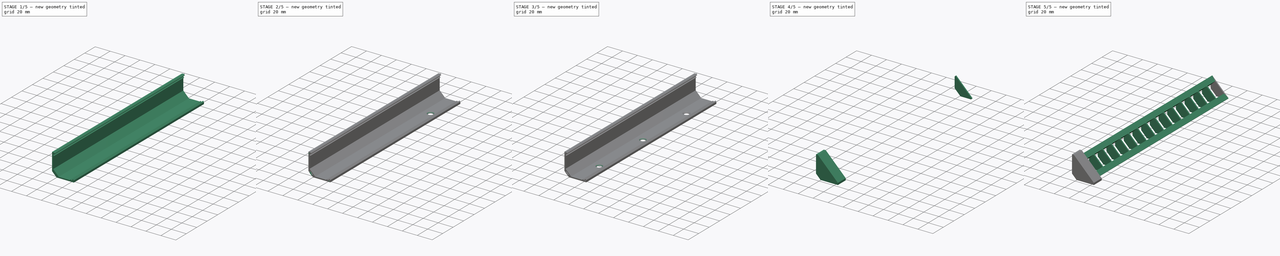
[diagram: build sequence overview — one tinted view per stage of 5, left to right]
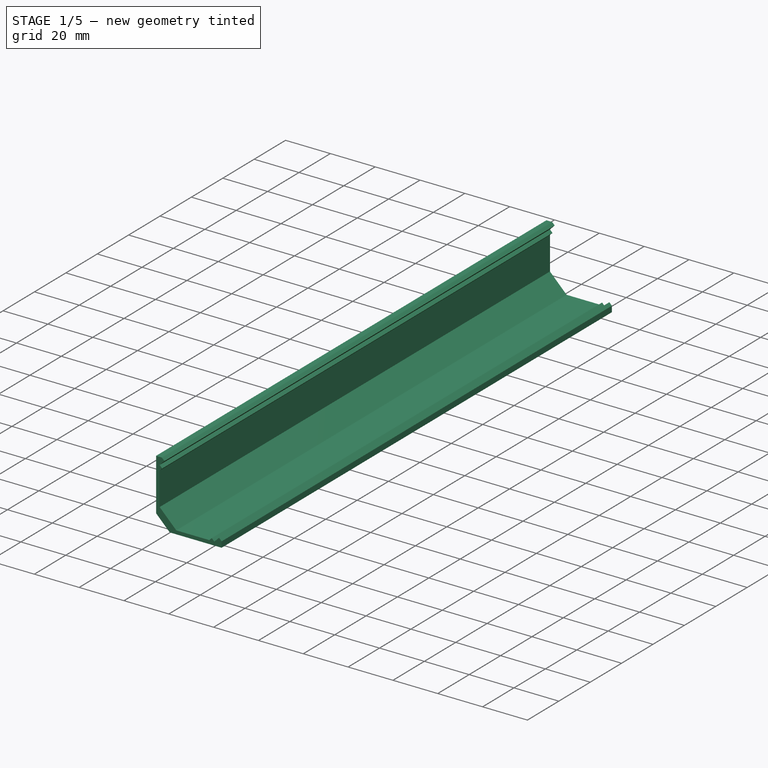
[diagram: stage 1 of 5 — iso view after this stage's code; geometry added in this stage tinted green]
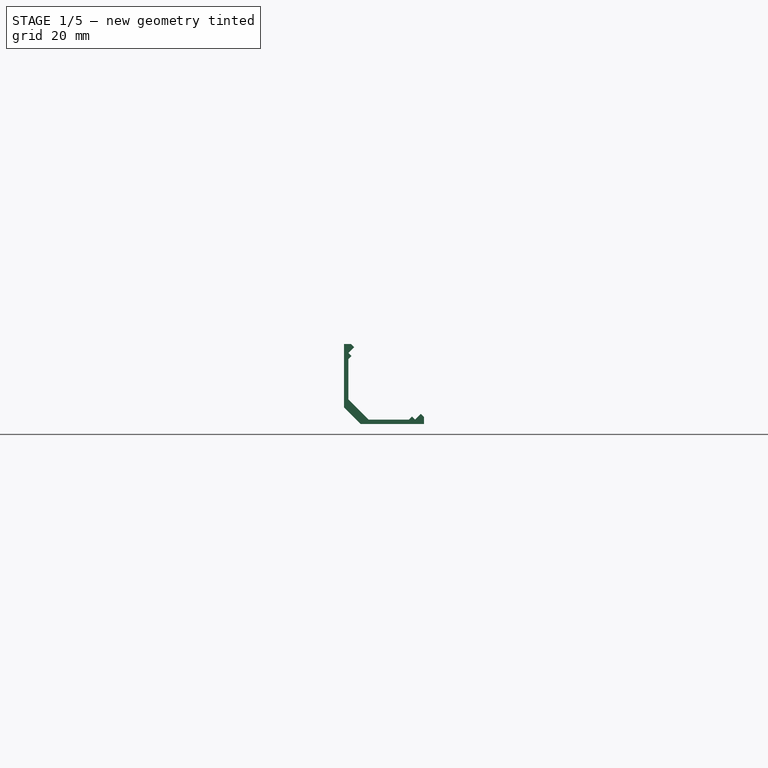
[diagram: stage 1 of 5 — front view after this stage's code; geometry added in this stage tinted green]
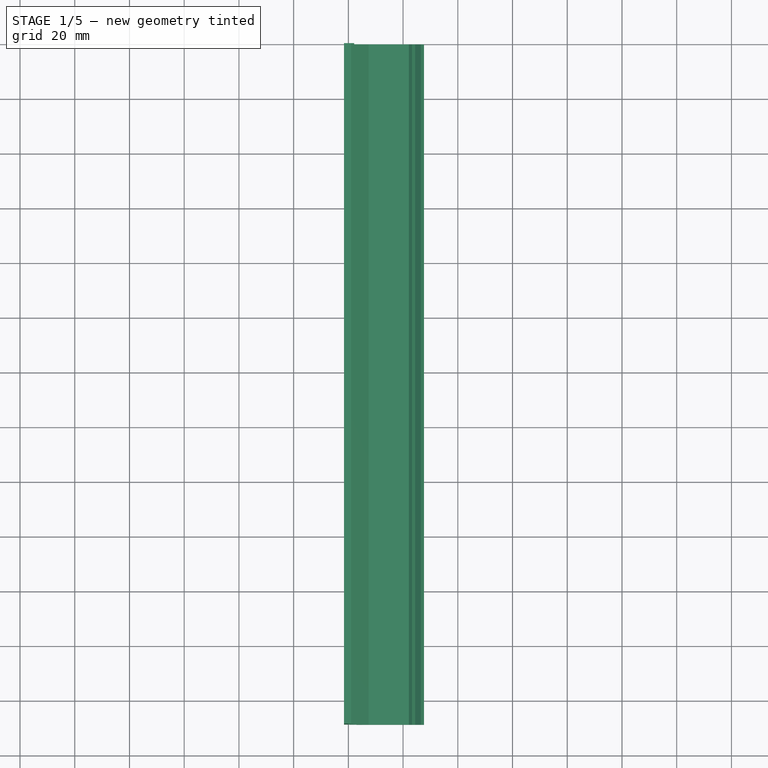
[diagram: stage 1 of 5 — top view after this stage's code; geometry added in this stage tinted green]
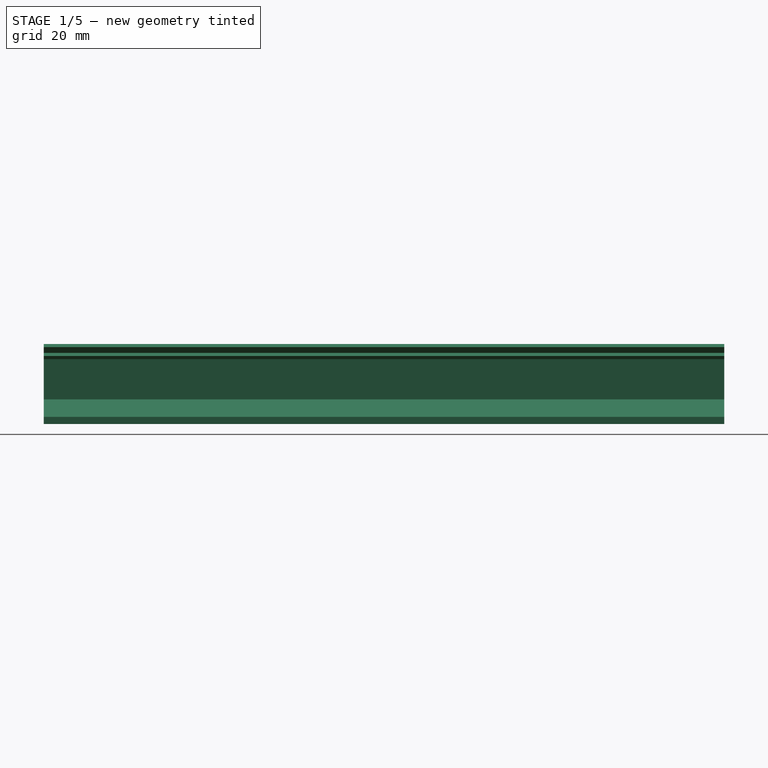
[diagram: stage 1 of 5 — right view after this stage's code; geometry added in this stage tinted green]
FCSTD DOCUMENT  (FreeCAD 1.1R20260325 (Git shallow))
Label: led-strip-mount-and-bracket
License: All rights reserved
objects: Sketcher::SketchObject×11, PartDesign::Pad×7, PartDesign::Pocket×3, PartDesign::Body×3, PartDesign::Mirrored×3, App::Point×3, PartDesign::SubShapeBinder×2, PartDesign::LinearPattern×2, Spreadsheet::Sheet×1, PartDesign::Plane×1, PartDesign::Hole×1
note: 71 computed .brp shape members not serialized (recipe doc carries the construction recipe); baked Part::Feature solids carry a one-line shape summary decoded from their .brp

FEATURE [Spreadsheet::Sheet] Spreadsheet  label="globals"
  cells = A1='Inner Wall Thickness; B1(inner_wall_thickness)==1.6 mm; A2='Outer Wall Thickness; B2(outer_wall_thickness)==3.2 mm; A3='Gap; B3(gap)==0.2 mm
FEATURE [Sketcher::SketchObject] Sketch
  ArcFitTolerance = 1e-06
  AttachmentSupport = -> [XZ_Plane]
  ExternalTypes = [0]
  FullyConstrained = true
  MakeInternals = false
  MapMode = 5
  Placement = pos=(0,0,0) rot=(1,0,0;1.5708rad)
  _ExternalGeoVersion = 0
  expr: Constraints[36] = <<globals>>.inner_wall_thickness
  expr: Constraints[49] = <<globals>>.inner_wall_thickness
  expr: Constraints[51] = <<globals>>.inner_wall_thickness
  expr: Constraints[52] = <<globals>>.inner_wall_thickness
  expr: Constraints[56] = <<globals>>.inner_wall_thickness * 2
  sketch-geometry (21):
    g0: LineSegment StartX=0 StartY=22.1324 StartZ=0 EndX=0 EndY=7.42462 EndZ=0
    g1: GeomPoint [constr] X=0 Y=0 Z=0
    g2: LineSegment StartX=7.42462 StartY=0 StartZ=0 EndX=22.1324 EndY=0 EndZ=0
    g3: LineSegment StartX=-1.6 StartY=27.6479 StartZ=0 EndX=-1.6 EndY=4.49914 EndZ=0
    g4: LineSegment StartX=4.49914 StartY=-1.6 StartZ=0 EndX=27.6479 EndY=-1.6 EndZ=0
    g5: LineSegment StartX=0 StartY=7.42462 StartZ=0 EndX=7.42462 EndY=0 EndZ=0
    g6: LineSegment [constr] StartX=0 StartY=24.3952 StartZ=0 EndX=24.3952 EndY=0 EndZ=0
    g7: LineSegment [constr] StartX=0 StartY=24.3952 StartZ=0 EndX=2.12132 EndY=26.5165 EndZ=0
    g8: LineSegment [constr] StartX=2.12132 StartY=26.5165 StartZ=0 EndX=26.5165 EndY=2.12132 EndZ=0
    g9: LineSegment [constr] StartX=26.5165 StartY=2.12132 StartZ=0 EndX=24.3952 EndY=0 EndZ=0
    g10: LineSegment StartX=2.12132 StartY=26.5165 StartZ=0 EndX=0.989949 EndY=27.6479 EndZ=0
    g11: LineSegment StartX=0.989949 StartY=27.6479 StartZ=0 EndX=-1.6 EndY=27.6479 EndZ=0
    g12: LineSegment StartX=0 StartY=24.3952 StartZ=0 EndX=2.12132 EndY=26.5165 EndZ=0
    g13: LineSegment StartX=0 StartY=22.1324 StartZ=0 EndX=1.13137 EndY=23.2638 EndZ=0
    g14: LineSegment StartX=0 StartY=24.3952 StartZ=0 EndX=1.13137 EndY=23.2638 EndZ=0
    g15: LineSegment StartX=22.1324 StartY=0 StartZ=0 EndX=23.2638 EndY=1.13137 EndZ=0
    g16: LineSegment StartX=23.2638 StartY=1.13137 StartZ=0 EndX=24.3952 EndY=0 EndZ=0
    g17: LineSegment StartX=24.3952 StartY=0 StartZ=0 EndX=26.5165 EndY=2.12132 EndZ=0
    g18: LineSegment StartX=26.5165 StartY=2.12132 StartZ=0 EndX=27.6479 EndY=0.989949 EndZ=0
    g19: LineSegment StartX=27.6479 StartY=0.989949 StartZ=0 EndX=27.6479 EndY=-1.6 EndZ=0
    g20: LineSegment StartX=-1.6 StartY=4.49914 StartZ=0 EndX=4.49914 EndY=-1.6 EndZ=0
  constraints (57):
    c: Vertical(g0)
    c: Coincident(g1,g-1)
    c: Horizontal(g2)
    c: Vertical(g3)
    c: Horizontal(g4)
    c: Distance(g3,g0) = 1.6
    c: Distance(g4,g2) = 1.6
    c: Coincident(g0,g5)
    c: Coincident(g2,g5)
    c: Angle(g5,g-2,g0) = 2.35619
    c: PointOnObject(g2,g-1)
    c: PointOnObject(g0,g-2)
    c: Distance(g5,g5) = 10.5
    c: Parallel(g6,g5)
    c: Coincident(g6,g7)
    c: Coincident(g7,g8)
    c: Coincident(g8,g9)
    c: Coincident(g9,g6)
    c: Distance(g7,g7) = 3
    c: Equal(g7,g9)
    c: Equal(g8,g6)
    c: Angle(g7,g-2,g6) = 0.785398
    c: Distance(g5,g6) = 12
    c: Coincident(g10,g11)
    c: Horizontal(g11)
    c: Coincident(g3,g11)
    c: Parallel(g10,g8)
    c: Coincident(g12,g10)
    c: Coincident(g10,g7)
    c: Coincident(g13,g0)
    c: PointOnObject(g13,g6)
    c: Coincident(g14,g12)
    c: Coincident(g14,g13)
    c: Perpendicular(g14,g13)
    c: Coincident(g12,g6)
    c: PointOnObject(g6,g-2)
    c: Distance(g14,g14) = 1.6
    c: Coincident(g2,g15)
    c: PointOnObject(g15,g6)
    c: Coincident(g15,g16)
    c: PointOnObject(g16,g-1)
    c: Coincident(g16,g17)
    c: Coincident(g17,g8)
    c: Coincident(g17,g18)
    c: Coincident(g18,g19)
    c: Vertical(g19)
    c: Coincident(g19,g4)
    c: Coincident(g6,g16)
    c: Perpendicular(g15,g16)
    c: Distance(g16,g16) = 1.6
    c: Parallel(g8,g18)
    c: Distance(g18,g18) = 1.6
    c: Distance(g10,g10) = 1.6
    c: Coincident(g20,g3)
    c: Coincident(g20,g4)
    c: Parallel(g5,g20)
    c: Distance(g20,g5) = 3.2
FEATURE [PartDesign::Pad] Pad
  Direction = (0,-1,2e-16)
  Length = 248.7
  Length2 = 10
  Placement = pos=(0,0,0) rot=(1,0,0;1.5708rad)
  Profile = -> Sketch
  ReferenceAxis = -> Sketch [N_Axis]
  Refine = true
  SideType = 0
  Suppressed = false
  Type = 0
  Type2 = 0
FEATURE [PartDesign::Body] Body001  label="led-divider"
  AllowCompound = false
  Group = -> [Binder,Sketch001,Pad001,Sketch002,Pad002,LinearPattern,Sketch003,Pocket]
  Origin = -> Origin001
  Tip = -> Pocket
FEATURE [Sketcher::SketchObject] Sketch004
  ArcFitTolerance = 1e-06
  AttachmentSupport = -> [XZ_Plane]
  ExternalGeometry = -> [Pad]
  ExternalTypes = [0]
  FullyConstrained = true
  MakeInternals = false
  MapMode = 5
  Placement = pos=(0,0,0) rot=(1,0,0;1.5708rad)
  _ExternalGeoVersion = 0
  expr: Constraints[44] = <<globals>>.inner_wall_thickness / 4 * 3
  expr: Constraints[45] = 1
  sketch-geometry (16):
    g0: LineSegment StartX=0.3 StartY=25.9969 StartZ=0 EndX=0.6 EndY=26.5165 EndZ=0
    g1: LineSegment StartX=0.6 StartY=26.5165 StartZ=0 EndX=0.3 EndY=27.0361 EndZ=0
    g2: LineSegment StartX=0.3 StartY=27.0361 StartZ=0 EndX=-0.3 EndY=27.0361 EndZ=0
    g3: LineSegment StartX=-0.3 StartY=27.0361 StartZ=0 EndX=-0.6 EndY=26.5165 EndZ=0
    g4: LineSegment StartX=-0.6 StartY=26.5165 StartZ=0 EndX=-0.3 EndY=25.9969 EndZ=0
    g5: LineSegment StartX=-0.3 StartY=25.9969 StartZ=0 EndX=0.3 EndY=25.9969 EndZ=0
    g6: Circle [constr] CenterX=0 CenterY=26.5165 CenterZ=0 NormalX=0 NormalY=0 NormalZ=1 AngleXU=0 Radius=0.6
    g7: LineSegment [constr] StartX=-0.6 StartY=26.5165 StartZ=0 EndX=-1.6 EndY=26.5165 EndZ=0
    g8: LineSegment StartX=3.63259 StartY=2.37782 StartZ=0 EndX=1.51127 EndY=4.49914 EndZ=0
    g9: LineSegment StartX=1.51127 StartY=4.49914 StartZ=0 EndX=1.01421 EndY=4.49914 EndZ=0
    g10: LineSegment StartX=1.01421 StartY=4.49914 StartZ=0 EndX=0.662742 EndY=4.14767 EndZ=0
    g11: LineSegment StartX=0.662742 StartY=4.14767 StartZ=0 EndX=0.662742 EndY=3.65061 EndZ=0
    g12: LineSegment StartX=0.662742 StartY=3.65061 StartZ=0 EndX=2.78406 EndY=1.52929 EndZ=0
    g13: LineSegment StartX=2.78406 StartY=1.52929 StartZ=0 EndX=3.28112 EndY=1.52929 EndZ=0
    g14: LineSegment StartX=3.28112 StartY=1.52929 StartZ=0 EndX=3.63259 EndY=1.88076 EndZ=0
    g15: LineSegment StartX=3.63259 StartY=1.88076 StartZ=0 EndX=3.63259 EndY=2.37782 EndZ=0
  constraints (44):
    c: Coincident(g0,g1)
    c: Coincident(g1,g2)
    c: Coincident(g2,g3)
    c: Coincident(g3,g4)
    c: Coincident(g4,g5)
    c: Coincident(g5,g0)
    c: Equal(g0, g1-g5) x5
    c: PointOnObject(g0,g6)
    c: PointOnObject(g1,g6)
    c: PointOnObject(g2,g6)
    c: PointOnObject(g3,g6)
    c: PointOnObject(g4,g6)
    c: PointOnObject(g5,g6)
    c: Horizontal(g2)
    c: Horizontal(g6,g-5)
    c: PointOnObject(g6,g-2)
    c: Coincident(g7,g3)
    c: PointOnObject(g7,g-4)
    c: Horizontal(g7)
    c: DistanceX(g7,g7) = 1
    c: Coincident(g8,g9)
    c: Coincident(g9,g10)
    c: Coincident(g10,g11)
    c: Coincident(g11,g12)
    c: Coincident(g12,g13)
    c: Coincident(g13,g14)
    c: Coincident(g14,g15)
    c: Coincident(g15,g8)
    c: Vertical(g15)
    c: Vertical(g11)
    c: Horizontal(g13)
    c: Horizontal(g9)
    c: Equal(g15,g13)
    c: Equal(g15,g9)
    c: Equal(g15,g11)
    c: Perpendicular(g8,g14)
    c: Equal(g14,g10)
    c: Parallel(g10,g14)
    c: Parallel(g12,g-6)
    c: Horizontal(g-6,g9)
    c: Distance(g12,g8) = 1.2
    c: Distance(g-6,g12) = 1
    c: Distance(g8,g8) = 3
    c: Equal(g9,g10)
FEATURE [PartDesign::Pocket] Pocket001
  BaseFeature = -> Pad
  Direction = (0,1,-2e-16)
  Length = 2
  Length2 = 5
  Placement = pos=(0,0,0) rot=(1,0,0;1.5708rad)
  Profile = -> Sketch004
  ReferenceAxis = -> Sketch004 [N_Axis]
  Refine = true
  Reversed = true
  SideType = 0
  Suppressed = false
  TaperAngle = -1
  Type = 0
  Type2 = 0
FEATURE [PartDesign::Plane] DatumPlane
  AttachmentOffset = pos=(0,0,0) rot=(0,1,0;1.5708rad)
  AttachmentSupport = -> [Pocket001]
  Length = 103.084
  MapMode = 5
  Placement = pos=(1.44957,3e-16,1.44957) rot=(0.92388,0,0.382683;3.14159rad)
  ResizeMode = 0
  Width = 303.829
FEATURE [PartDesign::Mirrored] Mirrored
  BaseFeature = -> Pocket001
  MirrorPlane = -> DatumPlane
  Originals = -> [Pocket001]
  Placement = pos=(0,0,0) rot=(1,0,0;1.5708rad)
  Refine = true
  Suppressed = false
  TransformMode = 0
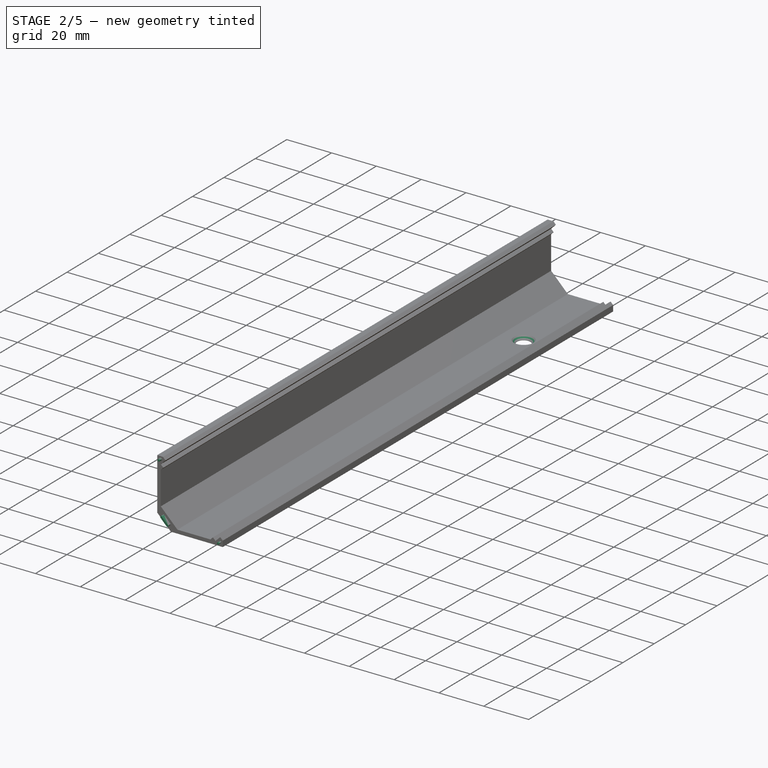
[diagram: stage 2 of 5 — iso view after this stage's code; geometry added in this stage tinted green]
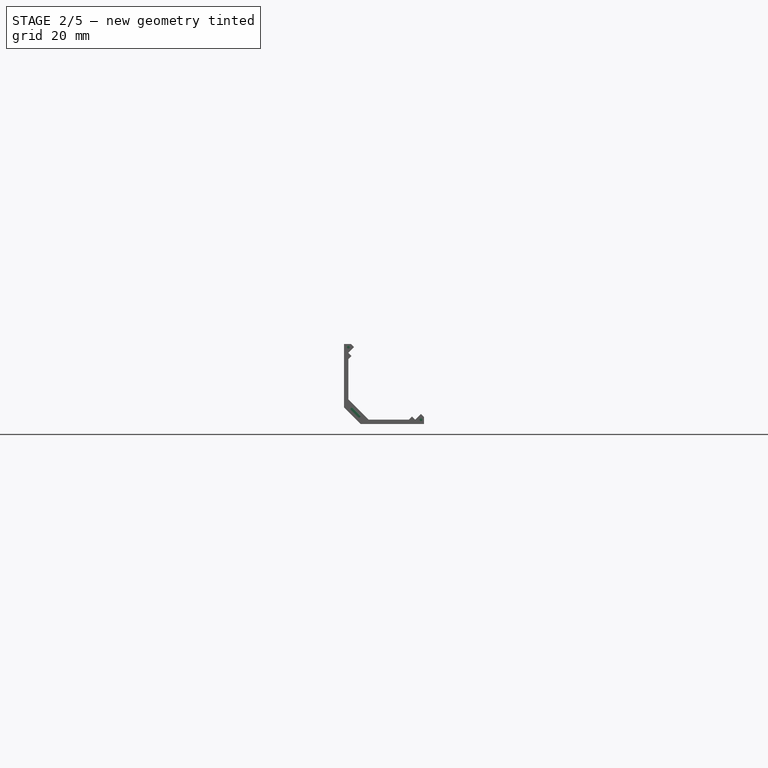
[diagram: stage 2 of 5 — front view after this stage's code; geometry added in this stage tinted green]
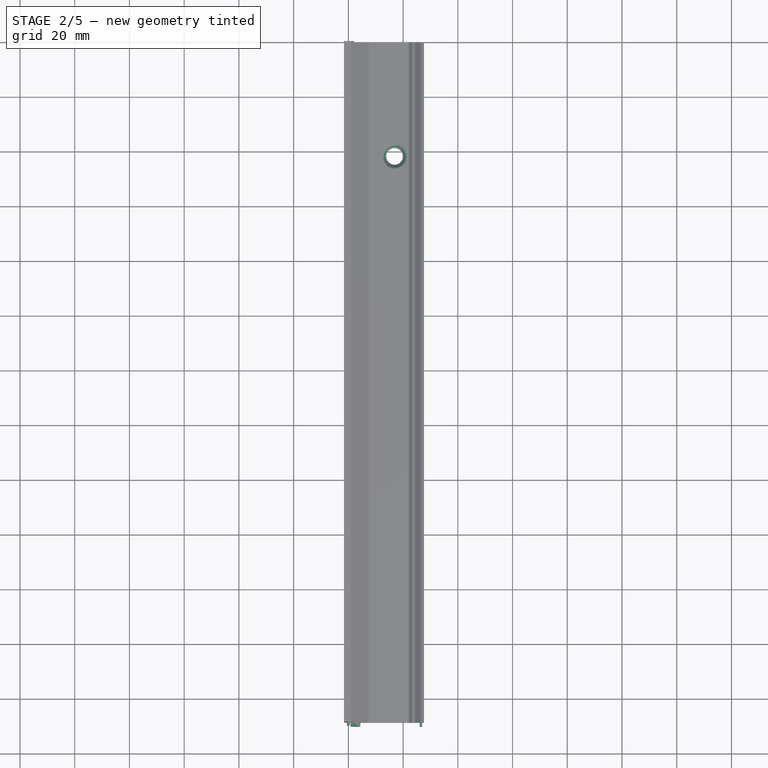
[diagram: stage 2 of 5 — top view after this stage's code; geometry added in this stage tinted green]
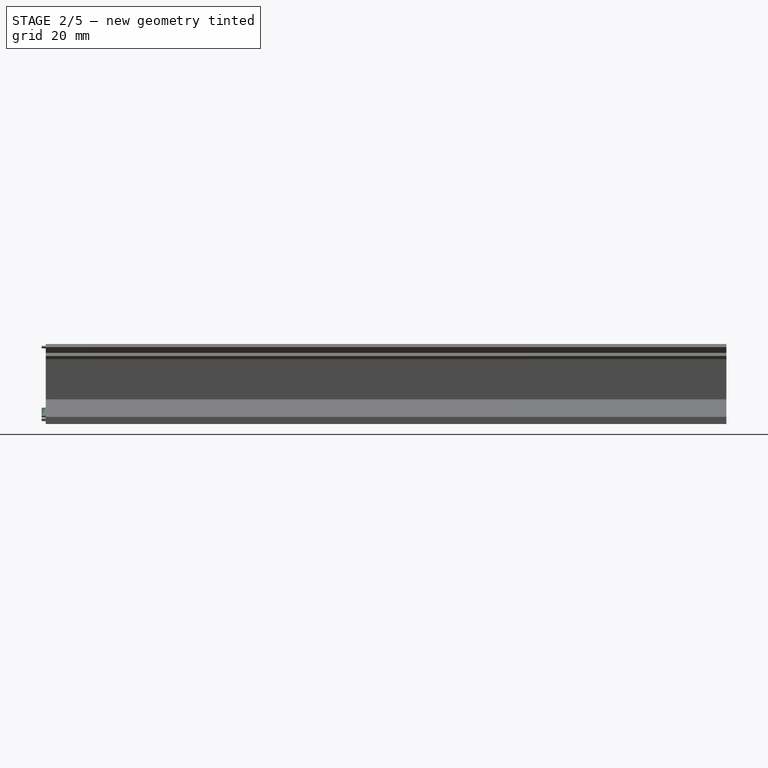
[diagram: stage 2 of 5 — right view after this stage's code; geometry added in this stage tinted green]
FEATURE [Sketcher::SketchObject] Sketch005
  ArcFitTolerance = 1e-06
  AttachmentSupport = -> [Mirrored]
  ExternalGeometry = -> [Mirrored]
  ExternalTypes = [0]
  FullyConstrained = true
  MakeInternals = false
  MapMode = 5
  Placement = pos=(0,-248.7,0) rot=(1,0,0;1.5708rad)
  _ExternalGeoVersion = 0
  sketch-geometry (15):
    g0: LineSegment StartX=0.275 StartY=26.0402 StartZ=0 EndX=0.55 EndY=26.5165 EndZ=0
    g1: LineSegment StartX=0.55 StartY=26.5165 StartZ=0 EndX=0.275 EndY=26.9928 EndZ=0
    g2: LineSegment StartX=0.275 StartY=26.9928 StartZ=0 EndX=-0.275 EndY=26.9928 EndZ=0
    g3: LineSegment StartX=-0.275 StartY=26.9928 StartZ=0 EndX=-0.55 EndY=26.5165 EndZ=0
    g4: LineSegment StartX=-0.55 StartY=26.5165 StartZ=0 EndX=-0.275 EndY=26.0402 EndZ=0
    g5: LineSegment StartX=-0.275 StartY=26.0402 StartZ=0 EndX=0.275 EndY=26.0402 EndZ=0
    g6: Circle [constr] CenterX=0 CenterY=26.5165 CenterZ=0 NormalX=0 NormalY=0 NormalZ=1 AngleXU=0 Radius=0.55
    g7: LineSegment StartX=0.762742 StartY=3.69203 StartZ=0 EndX=0.762742 EndY=4.10624 EndZ=0
    g8: LineSegment StartX=0.762742 StartY=4.10624 StartZ=0 EndX=1.05563 EndY=4.39914 EndZ=0
    g9: LineSegment StartX=1.05563 StartY=4.39914 StartZ=0 EndX=1.46985 EndY=4.39914 EndZ=0
    g10: LineSegment StartX=1.46985 StartY=4.39914 StartZ=0 EndX=4.39914 EndY=1.46985 EndZ=0
    g11: LineSegment StartX=4.39914 StartY=1.46985 StartZ=0 EndX=4.39914 EndY=1.05563 EndZ=0
    g12: LineSegment StartX=4.39914 StartY=1.05563 StartZ=0 EndX=4.10624 EndY=0.762742 EndZ=0
    g13: LineSegment StartX=4.10624 StartY=0.762742 StartZ=0 EndX=3.69203 EndY=0.762742 EndZ=0
    g14: LineSegment StartX=3.69203 StartY=0.762742 StartZ=0 EndX=0.762742 EndY=3.69203 EndZ=0
  constraints (41):
    c: Coincident(g0,g1)
    c: Coincident(g1,g2)
    c: Coincident(g2,g3)
    c: Coincident(g3,g4)
    c: Coincident(g4,g5)
    c: Coincident(g5,g0)
    c: Equal(g0, g1-g5) x5
    c: PointOnObject(g0,g6)
    c: PointOnObject(g1,g6)
    c: PointOnObject(g2,g6)
    c: PointOnObject(g3,g6)
    c: PointOnObject(g4,g6)
    c: PointOnObject(g5,g6)
    c: PointOnObject(g6,g-2)
    c: Horizontal(g2)
    c: Horizontal(g-6,g3)
    c: Distance(g3,g-6) = 0.05
    c: Coincident(g7,g8)
    c: Coincident(g8,g9)
    c: Coincident(g9,g10)
    c: Coincident(g10,g11)
    c: Coincident(g11,g12)
    c: Coincident(g12,g13)
    c: Coincident(g13,g14)
    c: Coincident(g14,g7)
    c: Horizontal(g9)
    c: Horizontal(g13)
    c: Vertical(g11)
    c: Vertical(g7)
    c: Equal(g8,g12)
    c: Equal(g10,g14)
    c: Equal(g7,g9)
    c: Equal(g7,g13)
    c: Equal(g7,g11)
    c: Parallel(g10,g-9)
    c: Distance(g-12,g7) = 0.1
    c: Distance(g-10,g9) = 0.1
    c: Distance(g-16,g11) = 0.1
    c: Distance(g-14,g13) = 0.1
    c: Distance(g-9,g10) = 0.1
    c: Distance(g-11,g8) = 0.1
FEATURE [PartDesign::Pad] Pad003
  BaseFeature = -> Mirrored
  Direction = (0,-1,2e-16)
  Length = 1.5
  Length2 = 10
  Placement = pos=(0,0,0) rot=(1,0,0;1.5708rad)
  Profile = -> Sketch005
  ReferenceAxis = -> Sketch005 [N_Axis]
  Refine = true
  SideType = 0
  Suppressed = false
  TaperAngle = -2
  Type = 0
  Type2 = 0
FEATURE [PartDesign::Mirrored] Mirrored001
  BaseFeature = -> Pad003
  MirrorPlane = -> DatumPlane
  Originals = -> [Pad003]
  Placement = pos=(0,0,0) rot=(1,0,0;1.5708rad)
  Refine = true
  Suppressed = false
  TransformMode = 0
FEATURE [Sketcher::SketchObject] Sketch006
  ArcFitTolerance = 1e-06
  AttachmentSupport = -> [Mirrored001]
  ExternalTypes = [0]
  FullyConstrained = true
  MakeInternals = false
  MapMode = 5
  Placement = pos=(0,0,0) rot=(0,0,1;3.14159rad)
  _ExternalGeoVersion = 0
  expr: Constraints[5] = 83.3333 mm / 2
  sketch-geometry (2):
    g0: Circle CenterX=-16.9014 CenterY=41.6667 CenterZ=0 NormalX=0 NormalY=0 NormalZ=1 AngleXU=0 Radius=2.5
    g1: LineSegment [constr] StartX=-16.9014 StartY=41.6667 StartZ=0 EndX=-16.9014 EndY=0 EndZ=0
  constraints (6):
    c: Diameter(g0) = 5
    c: Block(g0)
    c: Coincident(g1,g0)
    c: PointOnObject(g1,g-1)
    c: Vertical(g1)
    c: DistanceY(g1,g1) = 41.6666
FEATURE [PartDesign::Hole] Hole  label="mounting_hole"
  BaseFeature = -> Mirrored001
  BaseProfileType = 6
  CustomThreadClearance = 0
  Depth = 25
  DepthType = 0
  Diameter = 6
  DrillForDepth = false
  DrillPoint = 1
  DrillPointAngle = 118
  HoleCutCountersinkAngle = 90
  HoleCutCustomValues = false
  HoleCutDepth = 4.4
  HoleCutDiameter = 8.8
  HoleCutType = 2
  ModelThread = false
  Placement = pos=(0,0,0) rot=(1,0,0;1.5708rad)
  Profile = -> Sketch006
  Refine = true
  Suppressed = false
  Tapered = false
  TaperedAngle = 90
  ThreadClass = 0
  ThreadDepth = 25
  ThreadDepthType = 0
  ThreadDiameter = 6
  ThreadDirection = 0
  ThreadFit = 0
  ThreadSize = 0
  ThreadType = 0
  Threaded = false
  UseCustomThreadClearance = false
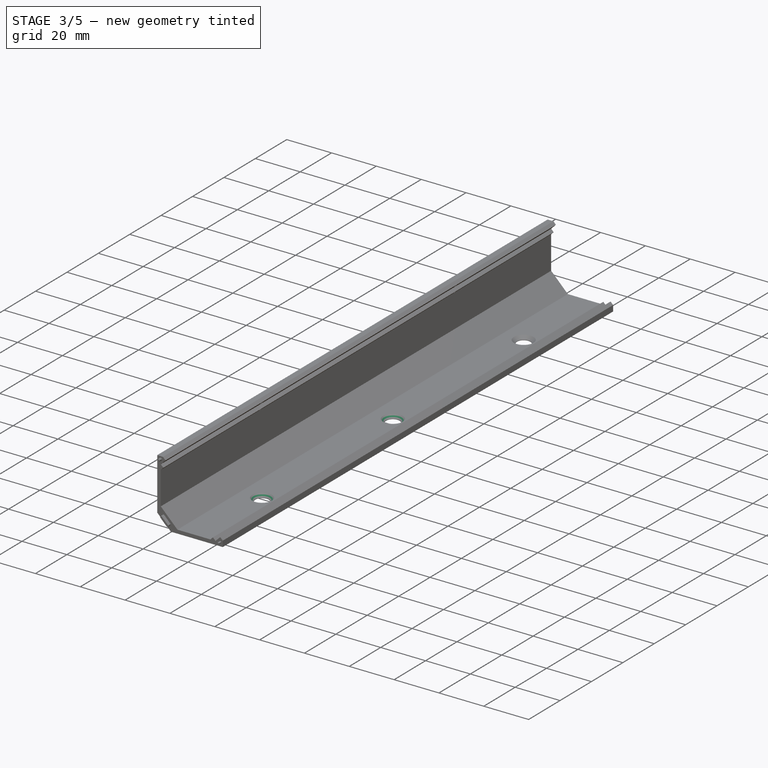
[diagram: stage 3 of 5 — iso view after this stage's code; geometry added in this stage tinted green]
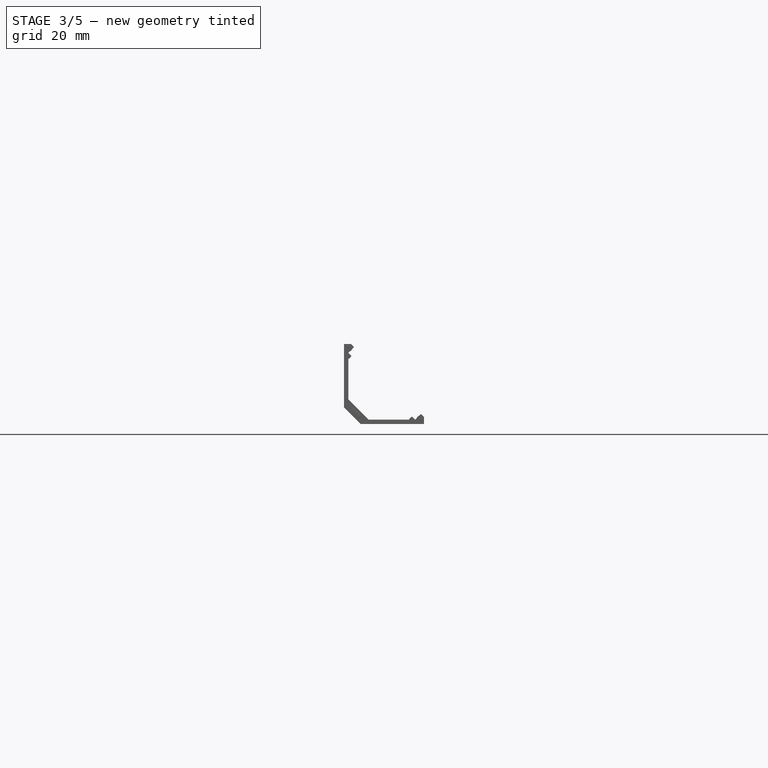
[diagram: stage 3 of 5 — front view after this stage's code; geometry added in this stage tinted green]
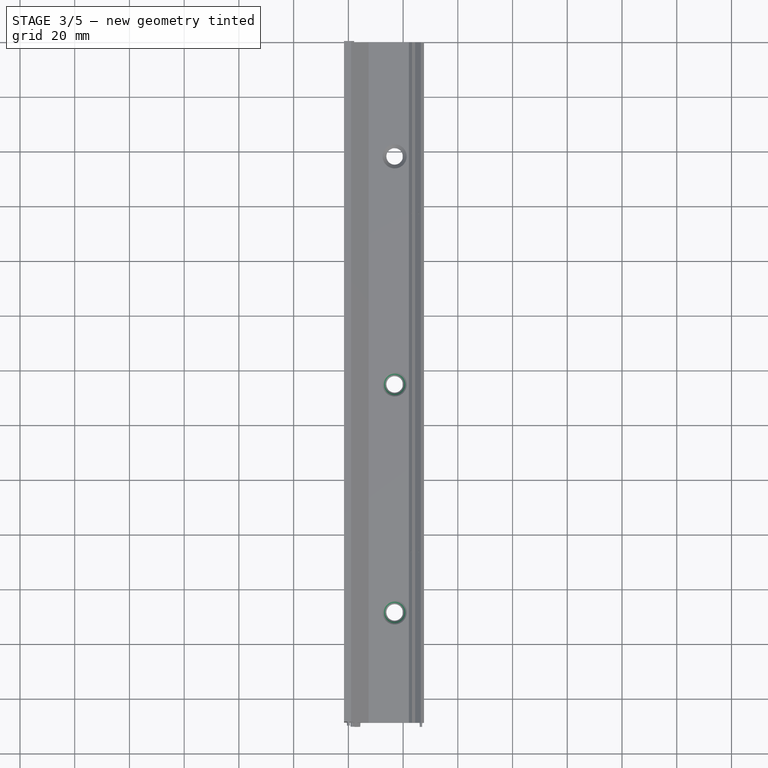
[diagram: stage 3 of 5 — top view after this stage's code; geometry added in this stage tinted green]
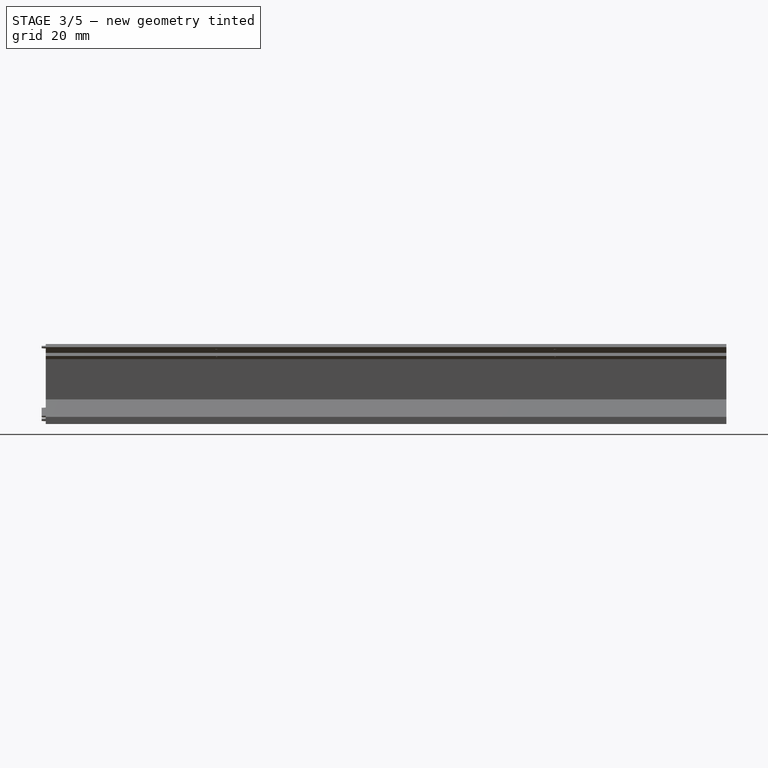
[diagram: stage 3 of 5 — right view after this stage's code; geometry added in this stage tinted green]
FEATURE [PartDesign::LinearPattern] LinearPattern001  label="mounting-hole-linear-pattern"
  BaseFeature = -> Hole
  Direction = -> Y_Axis
  Length = 166.667
  Length2 = 100
  Mode = 0
  Mode2 = 0
  Occurrences = 3
  Occurrences2 = 1
  Offset = 83.3333
  Offset2 = 10
  Originals = -> [Hole]
  Placement = pos=(0,0,0) rot=(1,0,0;1.5708rad)
  Refine = true
  Reversed = true
  Reversed2 = false
  SpacingPattern = [0]
  SpacingPattern2 = [0]
  Spacings = [-1,-1]
  Suppressed = false
  TransformMode = 0
  expr: Length = 250 mm - 83.3333 mm
FEATURE [Sketcher::SketchObject] Sketch007
  ArcFitTolerance = 1e-06
  AttachmentSupport = -> [LinearPattern001]
  ExternalGeometry = -> [LinearPattern001]
  ExternalTypes = [0]
  FullyConstrained = true
  MakeInternals = false
  MapMode = 5
  Placement = pos=(-12.1976,2.7e-15,12.1976) rot=(0.92388,0,0.382683;3.14159rad)
  _ExternalGeoVersion = 0
  expr: Constraints[0] = <<globals>>.inner_wall_thickness / 3 * 2
  expr: Constraints[10] = <<globals>>.inner_wall_thickness / 3 * 2
  sketch-geometry (4):
    g0: Circle CenterX=18.75 CenterY=62.5 CenterZ=0 NormalX=0 NormalY=0 NormalZ=1 AngleXU=0 Radius=0.533333
    g1: LineSegment [constr] StartX=20.25 StartY=62.5 StartZ=0 EndX=17.25 EndY=62.5 EndZ=0
    g2: Circle CenterX=18.75 CenterY=186.2 CenterZ=0 NormalX=0 NormalY=0 NormalZ=1 AngleXU=0 Radius=0.533333
    g3: LineSegment [constr] StartX=20.25 StartY=186.2 StartZ=0 EndX=17.25 EndY=186.2 EndZ=0
  constraints (12):
    c: Diameter(g0) = 1.06667
    c: PointOnObject(g1,g-4)
    c: PointOnObject(g1,g-3)
    c: Horizontal(g1)
    c: Symmetric(g1,g1,g0)
    c: Distance(g0,g-1) = 62.5
    c: PointOnObject(g3,g-4)
    c: PointOnObject(g3,g-3)
    c: Horizontal(g3)
    c: Symmetric(g3,g3,g2)
    c: Diameter(g2) = 1.06667
    c: DistanceY(g3,g-4) = 62.5
FEATURE [PartDesign::Pad] Pad004  label="acrylic-snap-fit"
  BaseFeature = -> LinearPattern001
  Direction = (0.707107,0,-0.707107)
  Length = 0.1
  Length2 = 10
  Placement = pos=(0,0,0) rot=(1,0,0;1.5708rad)
  Profile = -> Sketch007
  ReferenceAxis = -> Sketch007 [N_Axis]
  Refine = true
  SideType = 0
  Suppressed = false
  Type = 0
  Type2 = 0
FEATURE [Sketcher::SketchObject] Sketch008
  ArcFitTolerance = 1e-06
  AttachmentSupport = -> [Pad004]
  ExternalGeometry = -> [Pad004]
  ExternalTypes = [0]
  FullyConstrained = true
  MakeInternals = false
  MapMode = 5
  Placement = pos=(-11.0662,2.5e-15,11.0662) rot=(0.92388,0,0.382683;3.14159rad)
  _ExternalGeoVersion = 0
  expr: Constraints[0] = <<globals>>.inner_wall_thickness / 2
  expr: Constraints[6] = <<globals>>.inner_wall_thickness / 2
  sketch-geometry (4):
    g0: Circle CenterX=16.45 CenterY=62.5 CenterZ=0 NormalX=0 NormalY=0 NormalZ=1 AngleXU=0 Radius=0.4
    g1: LineSegment [constr] StartX=17.25 StartY=62.5 StartZ=0 EndX=15.65 EndY=62.5 EndZ=0
    g2: Circle CenterX=16.45 CenterY=186.2 CenterZ=0 NormalX=0 NormalY=0 NormalZ=1 AngleXU=0 Radius=0.4
    g3: LineSegment [constr] StartX=15.65 StartY=186.2 StartZ=0 EndX=17.25 EndY=186.2 EndZ=0
  constraints (12):
    c: Diameter(g0) = 0.8
    c: PointOnObject(g1,g-3)
    c: PointOnObject(g1,g-4)
    c: Horizontal(g1)
    c: Symmetric(g1,g1,g0)
    c: Distance(g0,g-1) = 62.5
    c: Diameter(g2) = 0.8
    c: PointOnObject(g3,g-4)
    c: PointOnObject(g3,g-3)
    c: Horizontal(g3)
    c: Symmetric(g3,g3,g2)
    c: DistanceY(g2,g-3) = 62.5
FEATURE [PartDesign::Pad] Pad005  label="box-snap-fit"
  BaseFeature = -> Pad004
  Direction = (0.707107,0,-0.707107)
  Length = 0.1
  Length2 = 10
  Placement = pos=(0,0,0) rot=(1,0,0;1.5708rad)
  Profile = -> Sketch008
  ReferenceAxis = -> Sketch008 [N_Axis]
  Refine = true
  SideType = 0
  Suppressed = false
  Type = 0
  Type2 = 0
FEATURE [PartDesign::Mirrored] Mirrored002
  BaseFeature = -> Pad005
  MirrorPlane = -> DatumPlane
  Originals = -> [Pad005,Pad004]
  Placement = pos=(0,0,0) rot=(1,0,0;1.5708rad)
  Refine = true
  Suppressed = false
  TransformMode = 0
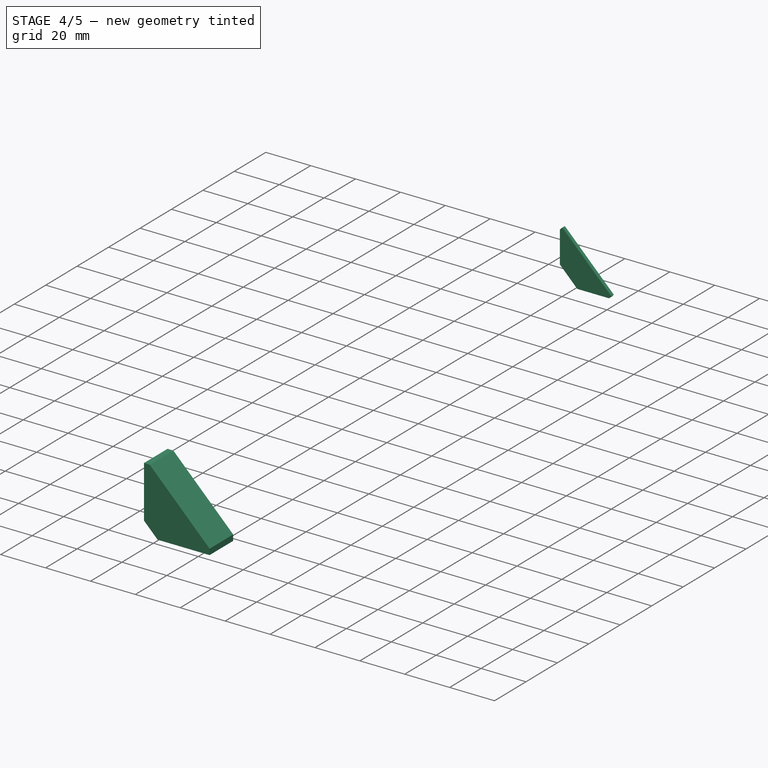
[diagram: stage 4 of 5 — iso view after this stage's code; geometry added in this stage tinted green]
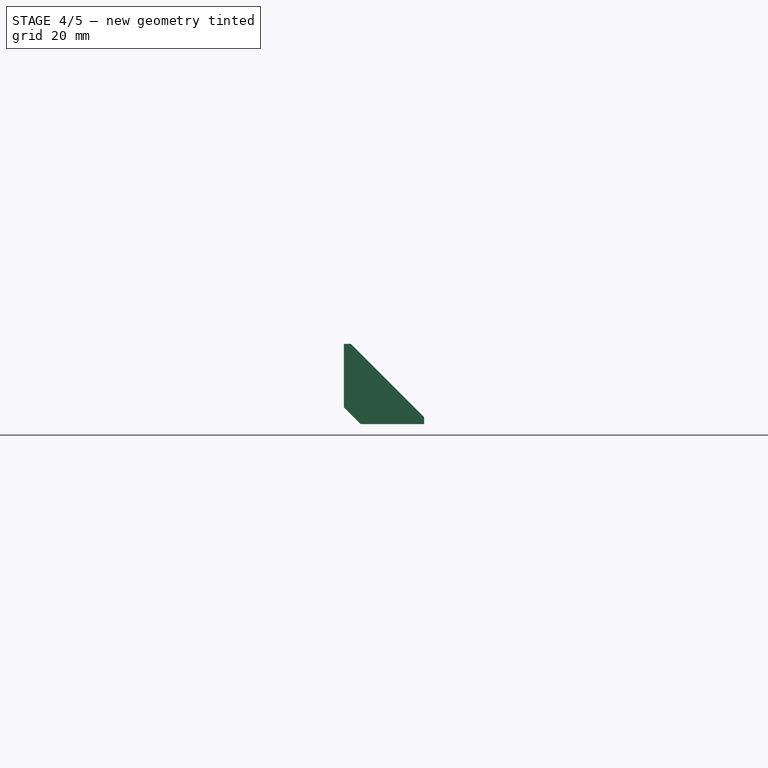
[diagram: stage 4 of 5 — front view after this stage's code; geometry added in this stage tinted green]
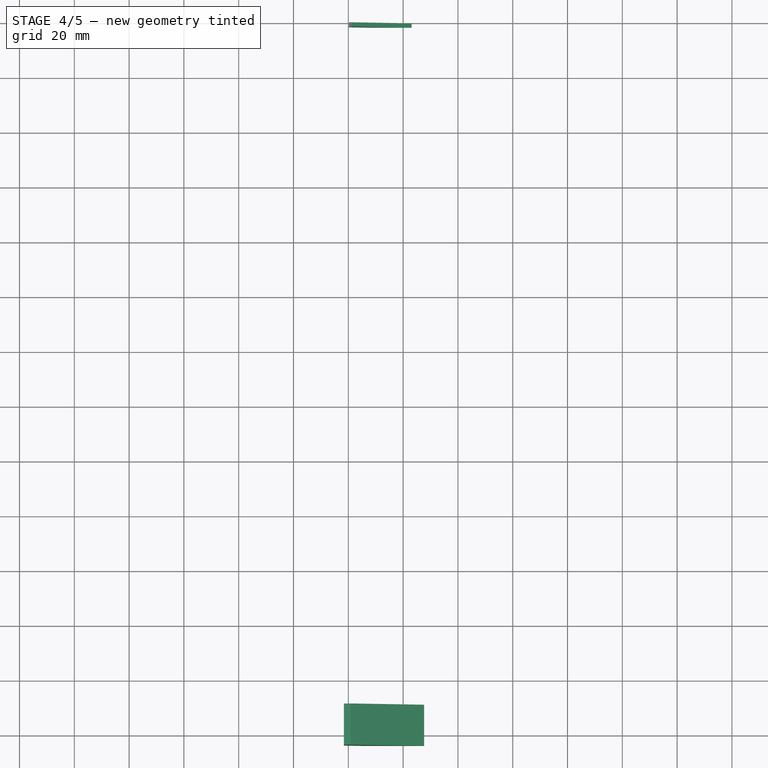
[diagram: stage 4 of 5 — top view after this stage's code; geometry added in this stage tinted green]
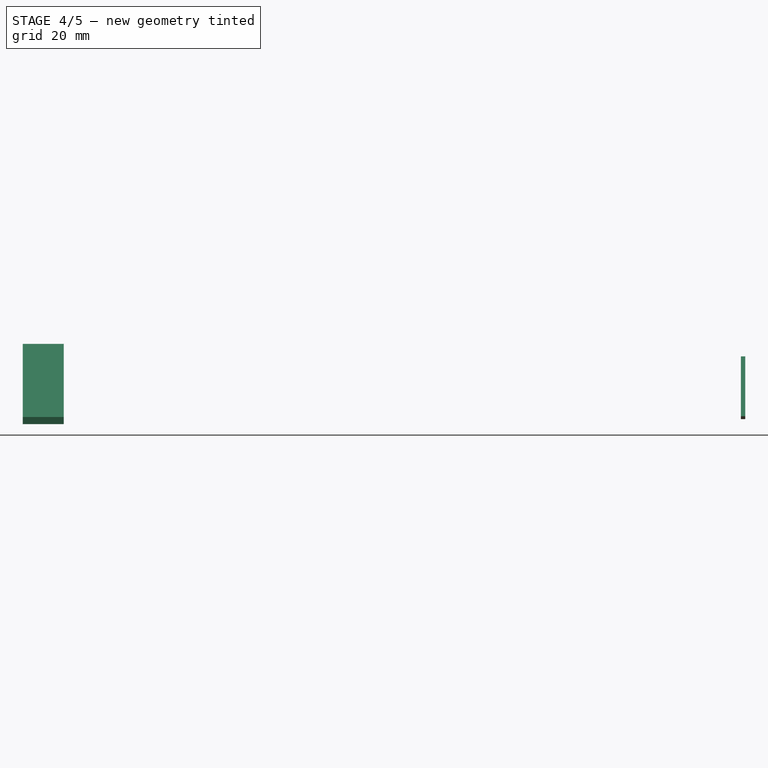
[diagram: stage 4 of 5 — right view after this stage's code; geometry added in this stage tinted green]
FEATURE [PartDesign::SubShapeBinder] Binder
  BindCopyOnChange = 0
  BindMode = 0
  ClaimChildren = false
  Context = -> Body001 [Binder.]
  Fuse = false
  MakeFace = true
  OffsetFill = false
  OffsetIntersection = false
  OffsetJoinType = 0
  OffsetOpenResult = false
  PartialLoad = false
  Refine = true
  Relative = true
  Support = -> [Body]
  _Version = 2
FEATURE [Sketcher::SketchObject] Sketch001
  ArcFitTolerance = 1e-06
  AttachmentSupport = -> [XZ_Plane001]
  ExternalGeometry = -> [Binder]
  ExternalTypes = [0]
  FullyConstrained = true
  MakeInternals = false
  MapMode = 5
  Placement = pos=(0,0,0) rot=(1,0,0;1.5708rad)
  _ExternalGeoVersion = 0
  expr: Constraints[10] = <<globals>>.gap
  expr: Constraints[11] = <<globals>>.gap
  expr: Constraints[18] = <<globals>>.gap
  expr: Constraints[19] = <<globals>>.gap
  sketch-geometry (7):
    g0: LineSegment StartX=1.27279 StartY=23.1224 StartZ=0 EndX=0.2 EndY=22.0496 EndZ=0
    g1: LineSegment StartX=0.2 StartY=22.0496 StartZ=0 EndX=0.2 EndY=7.93173 EndZ=0
    g2: LineSegment StartX=0.2 StartY=7.93173 StartZ=0 EndX=7.93173 EndY=0.2 EndZ=0
    g3: LineSegment StartX=7.93173 StartY=0.2 StartZ=0 EndX=22.0496 EndY=0.2 EndZ=0
    g4: LineSegment StartX=22.0496 StartY=0.2 StartZ=0 EndX=23.1224 EndY=1.27279 EndZ=0
    g5: LineSegment StartX=23.1224 StartY=1.27279 StartZ=0 EndX=1.27279 EndY=23.1224 EndZ=0
    g6: LineSegment [constr] StartX=1.13137 StartY=23.2638 StartZ=0 EndX=23.2638 EndY=1.13137 EndZ=0
  constraints (20):
    c: Coincident(g0,g1)
    c: Vertical(g1)
    c: Coincident(g1,g2)
    c: Coincident(g2,g3)
    c: Horizontal(g3)
    c: Coincident(g3,g4)
    c: Coincident(g4,g5)
    c: Coincident(g5,g0)
    c: Parallel(g2,g5)
    c: Parallel(g-3,g0)
    c: Distance(g-3,g1) = 0.2
    c: Distance(g-3,g0) = 0.2
    c: Coincident(g6,g-3)
    c: PointOnObject(g0,g6)
    c: Distance(g2,g-5) = 0.5
    c: Coincident(g6,g-4)
    c: PointOnObject(g4,g6)
    c: Parallel(g-4,g4)
    c: Distance(g4,g-4) = 0.2
    c: Distance(g-1,g3) = 0.2
FEATURE [PartDesign::Pad] Pad001
  Direction = (0,-1,2e-16)
  Length = 1.6
  Length2 = 10
  Placement = pos=(0,0,0) rot=(1,0,0;1.5708rad)
  Profile = -> Sketch001
  ReferenceAxis = -> Sketch001 [N_Axis]
  Refine = true
  SideType = 0
  Suppressed = false
  Type = 0
  Type2 = 0
  expr: Length = <<globals>>.inner_wall_thickness
FEATURE [PartDesign::Body] Body  label="bracket"
  AllowCompound = false
  Group = -> [Sketch,Pad,Sketch004,Pocket001,DatumPlane,Mirrored,Sketch005,Pad003,Mirrored001,Sketch006,Hole,LinearPattern001,Sketch007,Pad004,Sketch008,Pad005,Mirrored002]
  Origin = -> Origin
  Tip = -> Mirrored002
FEATURE [PartDesign::SubShapeBinder] Binder001
  BindCopyOnChange = 0
  BindMode = 0
  ClaimChildren = false
  Context = -> Body002 [Binder001.]
  Fuse = false
  MakeFace = true
  OffsetFill = false
  OffsetIntersection = false
  OffsetJoinType = 0
  OffsetOpenResult = false
  PartialLoad = false
  Refine = true
  Relative = true
  Support = -> [Body]
  _Version = 2
FEATURE [Sketcher::SketchObject] Sketch009
  ArcFitTolerance = 1e-06
  AttachmentSupport = -> [Binder001]
  ExternalGeometry = -> [Binder001]
  ExternalTypes = [0]
  FullyConstrained = true
  MakeInternals = false
  MapMode = 5
  Placement = pos=(0,-248.7,0) rot=(1,0,0;1.5708rad)
  _ExternalGeoVersion = 0
  sketch-geometry (8):
    g0: LineSegment StartX=-1.6 StartY=4.49914 StartZ=0 EndX=4.49914 EndY=-1.6 EndZ=0
    g1: LineSegment StartX=4.49914 StartY=-1.6 StartZ=0 EndX=27.6479 EndY=-1.6 EndZ=0
    g2: LineSegment StartX=27.6479 StartY=-1.6 StartZ=0 EndX=27.6479 EndY=0.989949 EndZ=0
    g3: LineSegment StartX=27.6479 StartY=0.989949 StartZ=0 EndX=26.5165 EndY=2.12132 EndZ=0
    g4: LineSegment StartX=26.5165 StartY=2.12132 StartZ=0 EndX=2.12132 EndY=26.5165 EndZ=0
    g5: LineSegment StartX=2.12132 StartY=26.5165 StartZ=0 EndX=0.989949 EndY=27.6479 EndZ=0
    g6: LineSegment StartX=0.989949 StartY=27.6479 StartZ=0 EndX=-1.6 EndY=27.6479 EndZ=0
    g7: LineSegment StartX=-1.6 StartY=27.6479 StartZ=0 EndX=-1.6 EndY=4.49914 EndZ=0
  constraints (16):
    c: Coincident(g-3,g0)
    c: Coincident(g0,g-4)
    c: Coincident(g0,g1)
    c: Coincident(g1,g-8)
    c: Coincident(g1,g2)
    c: Coincident(g2,g-8)
    c: Coincident(g2,g3)
    c: Coincident(g3,g-7)
    c: Coincident(g3,g4)
    c: Coincident(g4,g-6)
    c: Coincident(g4,g5)
    c: Coincident(g5,g-6)
    c: Coincident(g5,g6)
    c: Coincident(g6,g-5)
    c: Coincident(g6,g7)
    c: Coincident(g7,g0)
FEATURE [PartDesign::Pad] Pad006
  Direction = (0,-1,2e-16)
  Length = 15
  Length2 = 10
  Profile = -> Sketch009
  ReferenceAxis = -> Sketch009 [N_Axis]
  Refine = true
  SideType = 0
  Suppressed = false
  Type = 0
  Type2 = 0
FEATURE [Sketcher::SketchObject] Sketch010
  ArcFitTolerance = 1e-06
  AttachmentSupport = -> [Pad006]
  ExternalGeometry = -> [Binder001]
  ExternalTypes = [0]
  FullyConstrained = true
  MakeInternals = false
  MapMode = 5
  Placement = pos=(0,-248.7,0) rot=(0,0.707107,0.707107;3.14159rad)
  _ExternalGeoVersion = 0
  sketch-geometry (22):
    g0: LineSegment StartX=0.275 StartY=26.0402 StartZ=0 EndX=0.55 EndY=26.5165 EndZ=0
    g1: LineSegment StartX=0.55 StartY=26.5165 StartZ=0 EndX=0.275 EndY=26.9928 EndZ=0
    g2: LineSegment StartX=0.275 StartY=26.9928 StartZ=0 EndX=-0.275 EndY=26.9928 EndZ=0
    g3: LineSegment StartX=-0.275 StartY=26.9928 StartZ=0 EndX=-0.55 EndY=26.5165 EndZ=0
    g4: LineSegment StartX=-0.55 StartY=26.5165 StartZ=0 EndX=-0.275 EndY=26.0402 EndZ=0
    g5: LineSegment StartX=-0.275 StartY=26.0402 StartZ=0 EndX=0.275 EndY=26.0402 EndZ=0
    g6: Circle [constr] CenterX=-6.414e-13 CenterY=26.5165 CenterZ=0 NormalX=0 NormalY=0 NormalZ=1 AngleXU=0 Radius=0.55
    g7: LineSegment StartX=-26.9928 StartY=-0.275 StartZ=0 EndX=-26.5165 EndY=-0.55 EndZ=0
    g8: LineSegment StartX=-26.5165 StartY=-0.55 StartZ=0 EndX=-26.0402 EndY=-0.275 EndZ=0
    g9: LineSegment StartX=-26.0402 StartY=-0.275 StartZ=0 EndX=-26.0402 EndY=0.275 EndZ=0
    g10: LineSegment StartX=-26.0402 StartY=0.275 StartZ=0 EndX=-26.5165 EndY=0.55 EndZ=0
    g11: LineSegment StartX=-26.5165 StartY=0.55 StartZ=0 EndX=-26.9928 EndY=0.275 EndZ=0
    g12: LineSegment StartX=-26.9928 StartY=0.275 StartZ=0 EndX=-26.9928 EndY=-0.275 EndZ=0
    g13: Circle [constr] CenterX=-26.5165 CenterY=1.35685e-10 CenterZ=0 NormalX=0 NormalY=0 NormalZ=1 AngleXU=0 Radius=0.55
    g14: LineSegment StartX=-0.762742 StartY=3.69203 StartZ=0 EndX=-0.762742 EndY=4.10624 EndZ=0
    g15: LineSegment StartX=-0.762742 StartY=4.10624 StartZ=0 EndX=-1.05563 EndY=4.39914 EndZ=0
    g16: LineSegment StartX=-1.05563 StartY=4.39914 StartZ=0 EndX=-1.46985 EndY=4.39914 EndZ=0
    g17: LineSegment StartX=-1.46985 StartY=4.39914 StartZ=0 EndX=-4.39914 EndY=1.46985 EndZ=0
    g18: LineSegment StartX=-4.39914 StartY=1.46985 StartZ=0 EndX=-4.39914 EndY=1.05563 EndZ=0
    g19: LineSegment StartX=-4.39914 StartY=1.05563 StartZ=0 EndX=-4.10624 EndY=0.762742 EndZ=0
    g20: LineSegment StartX=-4.10624 StartY=0.762742 StartZ=0 EndX=-3.69203 EndY=0.762742 EndZ=0
    g21: LineSegment StartX=-3.69203 StartY=0.762742 StartZ=0 EndX=-0.762742 EndY=3.69203 EndZ=0
  constraints (46):
    c: Coincident(g0,g1)
    c: Coincident(g1,g2)
    c: Coincident(g2,g3)
    c: Coincident(g3,g4)
    c: Coincident(g4,g5)
    c: Coincident(g5,g0)
    c: Equal(g0, g1-g5) x5
    c: PointOnObject(g0,g6)
    c: PointOnObject(g1,g6)
    c: PointOnObject(g2,g6)
    c: PointOnObject(g3,g6)
    c: PointOnObject(g4,g6)
    c: PointOnObject(g5,g6)
    c: Coincident(g5,g-6)
    c: Coincident(g2,g-8)
    c: Coincident(g7,g8)
    c: Coincident(g8,g9)
    c: Coincident(g9,g10)
    c: Coincident(g10,g11)
    c: Coincident(g11,g12)
    c: Coincident(g12,g7)
    c: Equal(g7, g8-g12) x5
    c: PointOnObject(g7,g13)
    c: PointOnObject(g8,g13)
    c: PointOnObject(g9,g13)
    c: PointOnObject(g10,g13)
    c: PointOnObject(g11,g13)
    c: PointOnObject(g12,g13)
    c: Coincident(g8,g-20)
    c: Coincident(g11,g-22)
    c: Coincident(g-13,g14)
    c: Coincident(g14,g-12)
    c: Coincident(g14,g15)
    c: Coincident(g15,g-11)
    c: Coincident(g15,g16)
    c: Coincident(g16,g-10)
    c: Coincident(g16,g17)
    c: Coincident(g17,g-14)
    c: Coincident(g17,g18)
    c: Coincident(g18,g-15)
    c: Coincident(g18,g19)
    c: Coincident(g19,g-16)
    c: Coincident(g19,g20)
    c: Coincident(g20,g-16)
    c: Coincident(g20,g21)
    c: Coincident(g21,g14)
FEATURE [PartDesign::Pocket] Pocket002
  BaseFeature = -> Pad006
  Direction = (0,-1,2e-16)
  Length = 2
  Length2 = 5
  Profile = -> Sketch010
  ReferenceAxis = -> Sketch010 [N_Axis]
  Refine = true
  SideType = 0
  Suppressed = false
  TaperAngle = -1
  Type = 0
  Type2 = 0
FEATURE [PartDesign::Body] Body002  label="endcap-left"
  AllowCompound = false
  Group = -> [Binder001,Sketch009,Pad006,Sketch010,Pocket002]
  Origin = -> Origin002
  Tip = -> Pocket002
FEATURE [App::Point] Origin003  label="Origin"
  Role = Origin
FEATURE [App::Point] Origin004  label="Origin"
  Role = Origin
FEATURE [App::Point] Origin005  label="Origin"
  Role = Origin
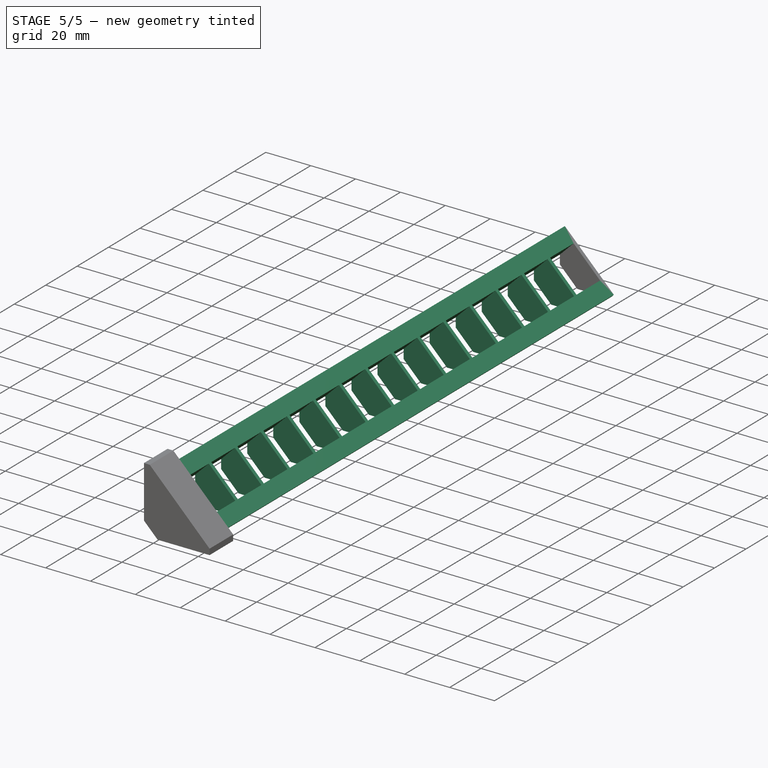
[diagram: stage 5 of 5 — iso view after this stage's code; geometry added in this stage tinted green]
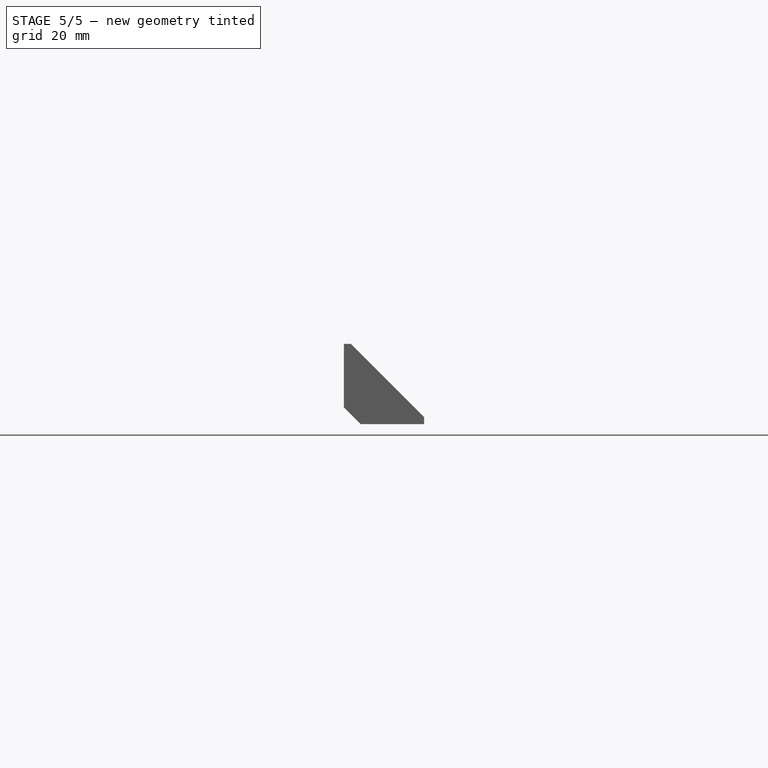
[diagram: stage 5 of 5 — front view after this stage's code; geometry added in this stage tinted green]
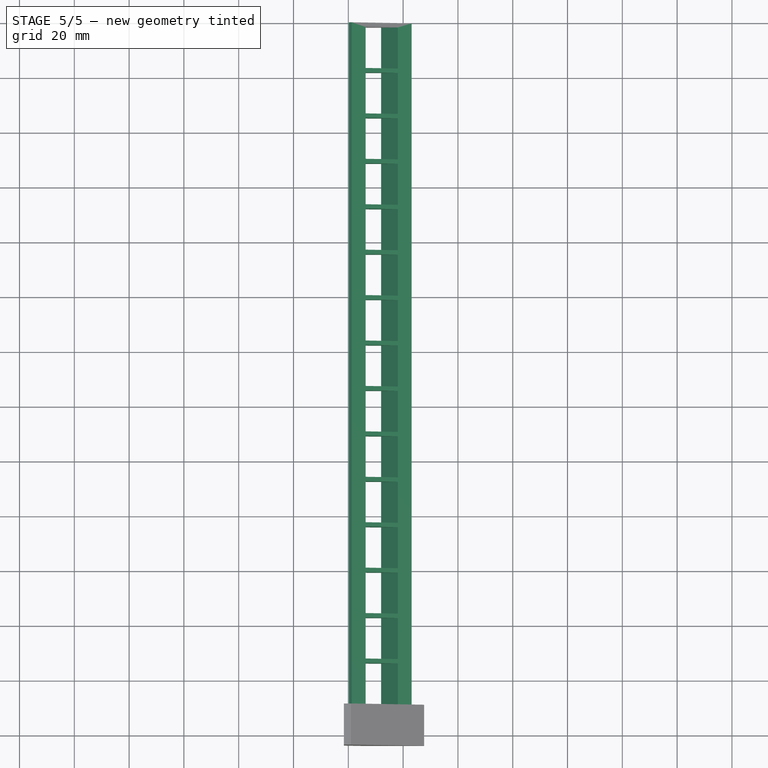
[diagram: stage 5 of 5 — top view after this stage's code; geometry added in this stage tinted green]
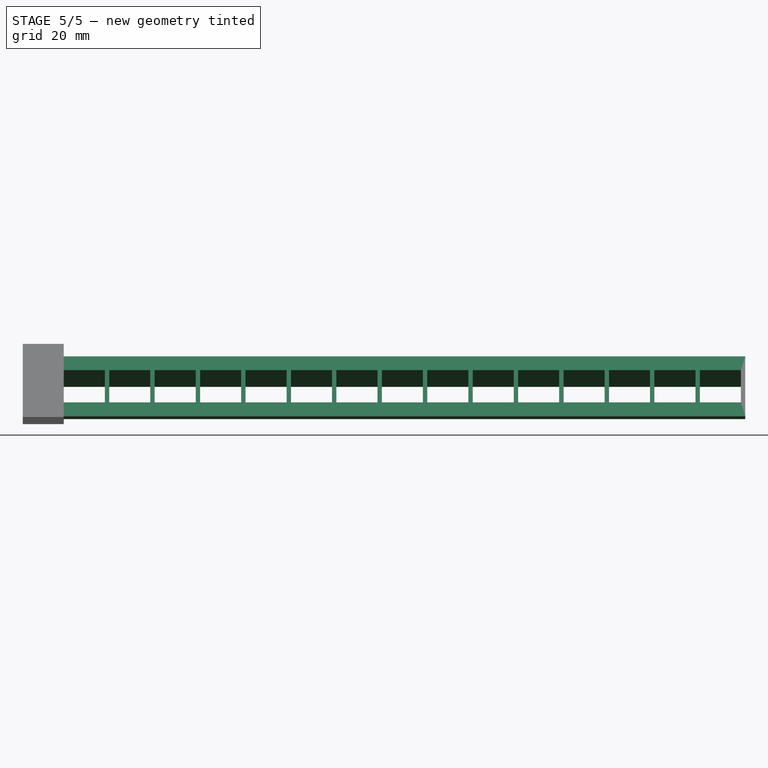
[diagram: stage 5 of 5 — right view after this stage's code; geometry added in this stage tinted green]
FEATURE [Sketcher::SketchObject] Sketch002
  ArcFitTolerance = 1e-06
  AttachmentSupport = -> [XZ_Plane001]
  ExternalGeometry = -> [Pad001]
  ExternalTypes = [0]
  FullyConstrained = true
  MakeInternals = false
  MapMode = 5
  Placement = pos=(0,0,0) rot=(1,0,0;1.5708rad)
  _ExternalGeoVersion = 0
  sketch-geometry (9):
    g0: LineSegment StartX=1.27279 StartY=23.1224 StartZ=0 EndX=0.2 EndY=22.0496 EndZ=0
    g1: LineSegment StartX=0.2 StartY=22.0496 StartZ=0 EndX=0.2 EndY=11.9853 EndZ=0
    g2: LineSegment StartX=0.2 StartY=11.9853 StartZ=0 EndX=6.30492 EndY=18.0903 EndZ=0
    g3: LineSegment StartX=6.30492 StartY=18.0903 StartZ=0 EndX=1.27279 EndY=23.1224 EndZ=0
    g4: LineSegment StartX=23.1224 StartY=1.27279 StartZ=0 EndX=18.0903 EndY=6.30492 EndZ=0
    g5: LineSegment StartX=18.0903 StartY=6.30492 StartZ=0 EndX=11.9853 EndY=0.2 EndZ=0
    g6: LineSegment StartX=11.9853 StartY=0.2 StartZ=0 EndX=22.0496 EndY=0.2 EndZ=0
    g7: LineSegment StartX=22.0496 StartY=0.2 StartZ=0 EndX=23.1224 EndY=1.27279 EndZ=0
    g8: LineSegment [constr] StartX=6.30492 StartY=18.0903 StartZ=0 EndX=18.0903 EndY=6.30492 EndZ=0
  constraints (22):
    c: Coincident(g-3,g0)
    c: Coincident(g0,g-3)
    c: Coincident(g0,g1)
    c: Vertical(g1)
    c: Coincident(g1,g2)
    c: Coincident(g2,g3)
    c: Coincident(g3,g0)
    c: Perpendicular(g3,g0)
    c: Parallel(g0,g2)
    c: Coincident(g-4,g4)
    c: Coincident(g4,g5)
    c: Coincident(g5,g6)
    c: Coincident(g6,g-4)
    c: Horizontal(g6)
    c: Coincident(g6,g7)
    c: Coincident(g7,g4)
    c: Perpendicular(g4,g7)
    c: Parallel(g5,g7)
    c: Coincident(g8,g2)
    c: Coincident(g8,g4)
    c: Distance(g8,g8) = 16.667
    c: Equal(g3,g4)
FEATURE [PartDesign::Pad] Pad002
  BaseFeature = -> Pad001
  Direction = (0,-1,2e-16)
  Length = 248.7
  Length2 = 10
  Placement = pos=(0,0,0) rot=(1,0,0;1.5708rad)
  Profile = -> Sketch002
  ReferenceAxis = -> Sketch002 [N_Axis]
  Refine = true
  SideType = 0
  Suppressed = false
  Type = 0
  Type2 = 0
FEATURE [PartDesign::LinearPattern] LinearPattern
  BaseFeature = -> Pad002
  Direction = -> Y_Axis001
  Length = 232.12
  Length2 = 100
  Mode = 1
  Mode2 = 0
  Occurrences = 15
  Occurrences2 = 1
  Offset = 16.58
  Offset2 = 10
  Originals = -> [Pad001]
  Placement = pos=(0,0,0) rot=(1,0,0;1.5708rad)
  Refine = true
  Reversed = true
  Reversed2 = false
  SpacingPattern = [0]
  SpacingPattern2 = [0]
  Spacings = [-1,-1,-1,-1,-1,-1,-1,-1,-1,-1,-1,-1,-1,-1]
  Suppressed = false
  TransformMode = 0
FEATURE [Sketcher::SketchObject] Sketch003
  ArcFitTolerance = 1e-06
  AttachmentSupport = -> [XZ_Plane001]
  ExternalGeometry = -> [Pad002]
  ExternalTypes = [0]
  FullyConstrained = false
  MakeInternals = false
  MapMode = 5
  Placement = pos=(0,0,0) rot=(1,0,0;1.5708rad)
  _ExternalGeoVersion = 0
  sketch-geometry (22):
    g0-g3: Circle [constr] x4 (B-spline internal-alignment scaffolding for g4; pole/knot coordinates omitted)
    g4: BSplineCurve PolesCount=4 KnotsCount=2 Degree=3 IsPeriodic=0
    g5: GeomPoint [constr] X=0.2 Y=21.1129 Z=0
    g6: GeomPoint [constr] X=0.2 Y=13.3724 Z=0
    g7: LineSegment StartX=0.2 StartY=21.1129 StartZ=0 EndX=0.2 EndY=13.3724 EndZ=0
    g8: LineSegment [constr] StartX=0.2 StartY=21.1129 StartZ=0 EndX=1.43164 EndY=21.1129 EndZ=0
    g9: LineSegment [constr] StartX=1.43164 StartY=21.1129 StartZ=0 EndX=1.43164 EndY=13.3724 EndZ=0
    g10: LineSegment [constr] StartX=1.43164 StartY=13.3724 StartZ=0 EndX=0.2 EndY=13.3724 EndZ=0
    g11-g14: Circle [constr] x4 (B-spline internal-alignment scaffolding for g15; pole/knot coordinates omitted)
    g15: BSplineCurve PolesCount=4 KnotsCount=2 Degree=3 IsPeriodic=0
    g16: GeomPoint [constr] X=20.8527 Y=0.2 Z=0
    g17: GeomPoint [constr] X=13.1122 Y=0.2 Z=0
    g18: LineSegment StartX=20.8527 StartY=0.2 StartZ=0 EndX=13.1122 EndY=0.2 EndZ=0
    g19: LineSegment [constr] StartX=20.8527 StartY=0.2 StartZ=0 EndX=20.8527 EndY=1.43164 EndZ=0
    g20: LineSegment [constr] StartX=20.8527 StartY=1.43164 StartZ=0 EndX=13.1122 EndY=1.43164 EndZ=0
    g21: LineSegment [constr] StartX=13.1122 StartY=1.43164 StartZ=0 EndX=13.1122 EndY=0.2 EndZ=0
  constraints (42):
    c: Weight(g0) = 1
    c: Equal(g0,g1)
    c: Equal(g0,g2)
    c: Equal(g0,g3)
    c: InternalAlignment(g0-g3 -> g4) x4
    c: InternalAlignment(g5,g4)
    c: InternalAlignment(g6,g4)
    c: PointOnObject(g0,g-3)
    c: PointOnObject(g3,g-3)
    c: Coincident(g7,g4)
    c: Coincident(g7,g4)
    c: Coincident(g8,g4)
    c: Coincident(g8,g1)
    c: Horizontal(g8)
    c: Coincident(g8,g9)
    c: Coincident(g9,g2)
    c: Vertical(g9)
    c: Coincident(g9,g10)
    c: Coincident(g10,g4)
    c: Horizontal(g10)
    c: Weight(g11) = 1
    c: Equal(g11,g12)
    c: Equal(g11,g13)
    c: Equal(g11,g14)
    c: InternalAlignment(g11-g14 -> g15) x4
    c: InternalAlignment(g16,g15)
    c: InternalAlignment(g17,g15)
    c: PointOnObject(g11,g-4)
    c: PointOnObject(g14,g-4)
    c: Coincident(g18,g15)
    c: Coincident(g18,g15)
    c: Coincident(g19,g15)
    c: Coincident(g19,g20)
    c: Horizontal(g20)
    c: Coincident(g20,g21)
    c: Coincident(g21,g15)
    c: Vertical(g21)
    c: Perpendicular(g19,g18)
    c: Equal(g19,g10)
    c: Equal(g9,g20)
    c: Coincident(g20,g13)
    c: Coincident(g19,g12)
FEATURE [PartDesign::Pocket] Pocket
  BaseFeature = -> LinearPattern
  Direction = (0,1,-2e-16)
  Length = 5
  Length2 = 5
  Placement = pos=(0,0,0) rot=(1,0,0;1.5708rad)
  Profile = -> Sketch003
  ReferenceAxis = -> Sketch003 [N_Axis]
  Refine = true
  Reversed = true
  SideType = 0
  Suppressed = false
  Type = 1
  Type2 = 0
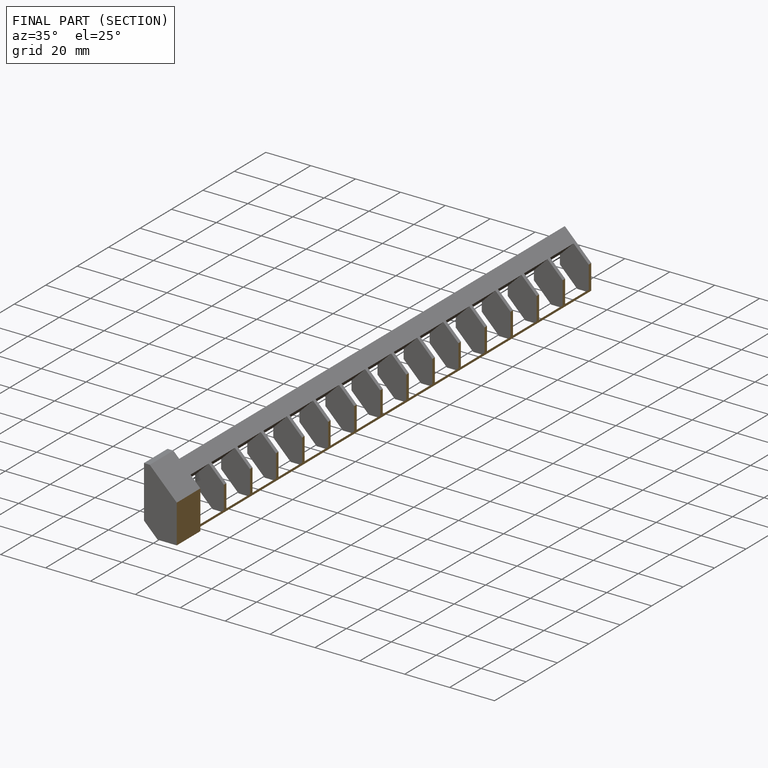
[diagram: finished part — half-section view (interior)]
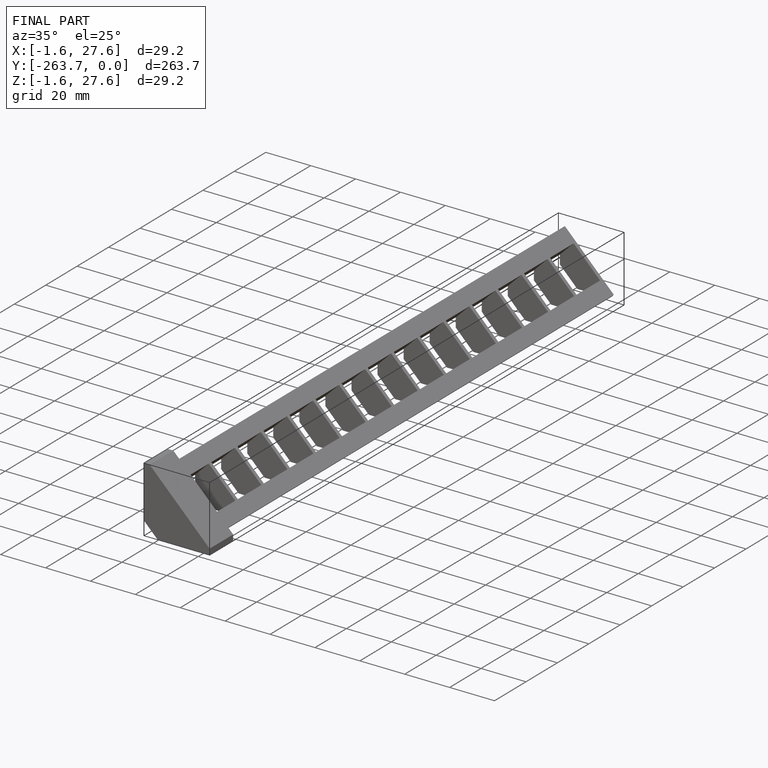
[diagram: finished part — iso view with bounding-box wireframe]
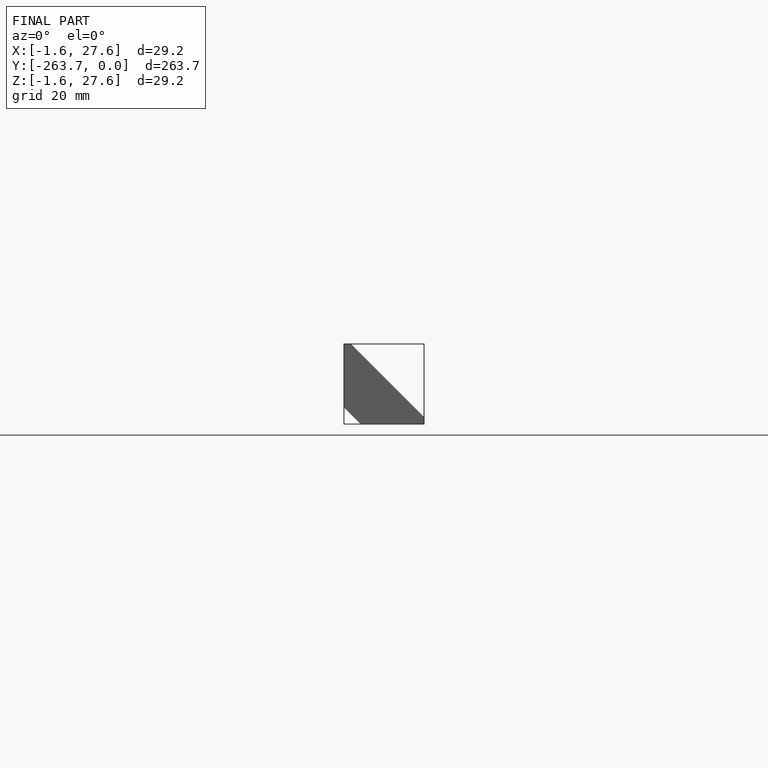
[diagram: finished part — front view with bounding-box wireframe]
